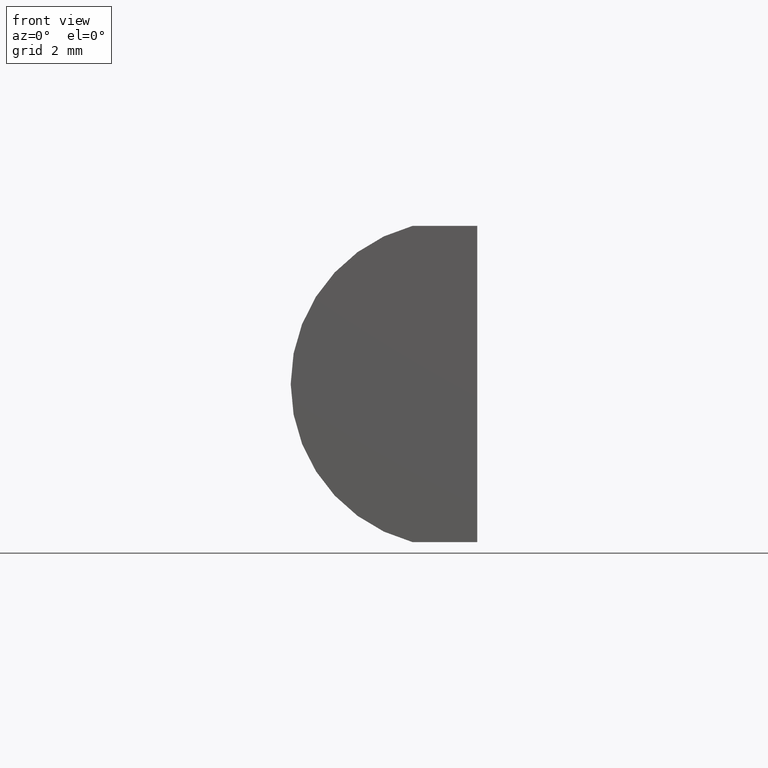
[diagram: clean part render]
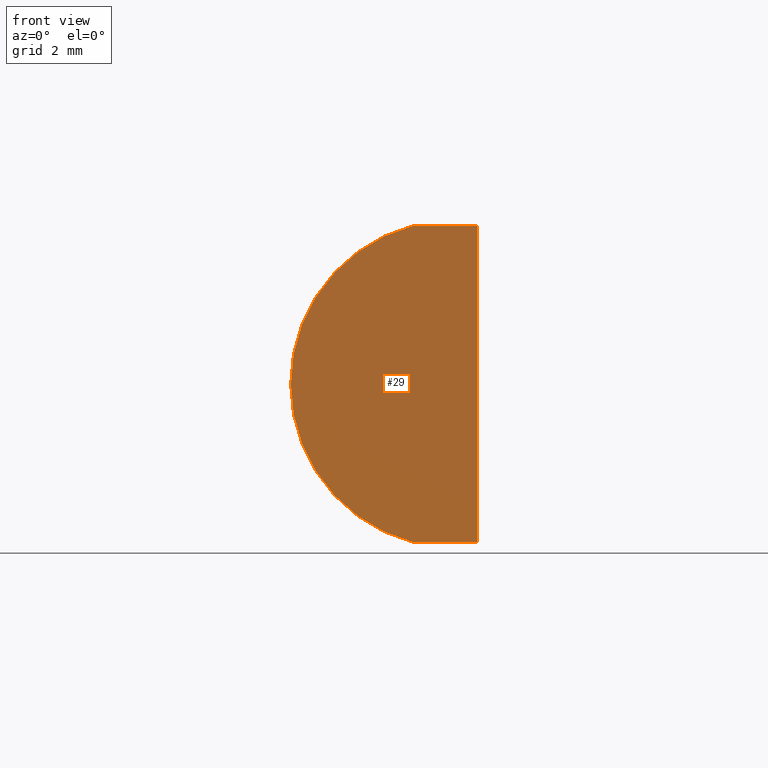
[diagram: same view with one face highlighted and labeled with its STEP entity id]
A machine part, front view. The second image highlights one B-rep face of the part: STEP entity #29.
In plain terms, the highlighted planar face has unit normal (0, 1, 0).
Its self-contained STEP definition (entity closure, byte-faithful):
#2 = AXIS2_PLACEMENT_3D ( 'NONE', #179, #9, #182 ) ;
#9 = DIRECTION ( 'NONE',  ( 0.0000000000000000000, 1.000000000000000000, 0.0000000000000000000 ) ) ;
#13 = CARTESIAN_POINT ( 'NONE',  ( 5.085204334851267700, 0.0000000000000000000, 5.000000000000000000 ) ) ;
#19 = CARTESIAN_POINT ( 'NONE',  ( 3.040327914802593700, 0.0000000000000000000, 5.000000000000000000 ) ) ;
#22 = AXIS2_PLACEMENT_3D ( 'NONE', #85, #27, #142 ) ;
#27 = DIRECTION ( 'NONE',  ( 0.0000000000000000000, 1.000000000000000000, 0.0000000000000000000 ) ) ;
#29 = ADVANCED_FACE ( 'NONE', ( #32 ), #108, .F. ) ;
#32 = FACE_OUTER_BOUND ( 'NONE', #153, .T. ) ;
#40 = CARTESIAN_POINT ( 'NONE',  ( 3.040327914802593700, 0.0000000000000000000, -5.000000000000000000 ) ) ;
#43 = VERTEX_POINT ( 'NONE', #13 ) ;
#48 = CARTESIAN_POINT ( 'NONE',  ( 5.085204334851264100, 0.0000000000000000000, -5.000000000000012400 ) ) ;
#60 = VECTOR ( 'NONE', #103, 1000.000000000000000 ) ;
#70 = VERTEX_POINT ( 'NONE', #40 ) ;
#79 = EDGE_CURVE ( 'NONE', #183, #43, #88, .T. ) ;
#81 = VECTOR ( 'NONE', #165, 1000.000000000000000 ) ;
#85 = CARTESIAN_POINT ( 'NONE',  ( 4.355204334851265500, 0.0000000000000000000, 4.286263797015675000E-017 ) ) ;
#88 = LINE ( 'NONE', #19, #175 ) ;
#100 = LINE ( 'NONE', #121, #60 ) ;
#103 = DIRECTION ( 'NONE',  ( -1.000000000000000000, -0.0000000000000000000, 5.938287621091856200E-015 ) ) ;
#108 = PLANE ( 'NONE',  #22 ) ;
#110 = CIRCLE ( 'NONE', #2, 5.170000000000000800 ) ;
#115 = ORIENTED_EDGE ( 'NONE', *, *, #198, .F. ) ;
#121 = CARTESIAN_POINT ( 'NONE',  ( 3.040327914802593700, 0.0000000000000000000, -5.000000000000000000 ) ) ;
#124 = CARTESIAN_POINT ( 'NONE',  ( 3.040327914802593700, 0.0000000000000000000, 5.000000000000000000 ) ) ;
#130 = CARTESIAN_POINT ( 'NONE',  ( 5.085204334851264100, 0.0000000000000000000, -5.000000000000012400 ) ) ;
#142 = DIRECTION ( 'NONE',  ( 0.0000000000000000000, -0.0000000000000000000, 1.000000000000000000 ) ) ;
#144 = VERTEX_POINT ( 'NONE', #130 ) ;
#147 = DIRECTION ( 'NONE',  ( 1.000000000000000000, 0.0000000000000000000, 0.0000000000000000000 ) ) ;
#153 = EDGE_LOOP ( 'NONE', ( #201, #115, #174, #199 ) ) ;
#165 = DIRECTION ( 'NONE',  ( -3.469446951953609800E-016, -0.0000000000000000000, -1.000000000000000000 ) ) ;
#167 = EDGE_CURVE ( 'NONE', #70, #183, #110, .T. ) ;
#174 = ORIENTED_EDGE ( 'NONE', *, *, #197, .F. ) ;
#175 = VECTOR ( 'NONE', #147, 1000.000000000000000 ) ;
#176 = LINE ( 'NONE', #48, #81 ) ;
#179 = CARTESIAN_POINT ( 'NONE',  ( 4.355204334851265500, 0.0000000000000000000, 4.286263797015675000E-017 ) ) ;
#182 = DIRECTION ( 'NONE',  ( 0.0000000000000000000, 0.0000000000000000000, 1.000000000000000000 ) ) ;
#183 = VERTEX_POINT ( 'NONE', #124 ) ;
#197 = EDGE_CURVE ( 'NONE', #43, #144, #176, .T. ) ;
#198 = EDGE_CURVE ( 'NONE', #144, #70, #100, .T. ) ;
#199 = ORIENTED_EDGE ( 'NONE', *, *, #79, .F. ) ;
#201 = ORIENTED_EDGE ( 'NONE', *, *, #167, .F. ) ;